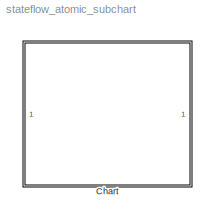
MODEL stateflow_atomic_subchart
KIND model
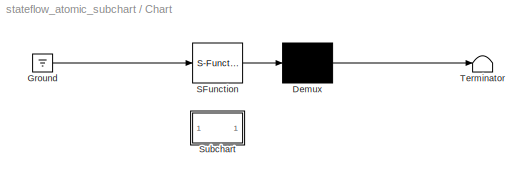
BLOCK [SubSystem] Chart
  ErrorFcn = Stateflow.Translate.translate
  PermitHierarchicalResolution = ExplicitOnly
  Ports = []
  RequestExecContextInheritance = off
  SFBlockType = Chart
  SID = 1
  TreatAsAtomicUnit = on
  Variant = off
BLOCK [Demux] Chart/ Demux 
  Outputs = 1
  Ports = [1, 1]
  SID = 1::79
BLOCK [Ground] Chart/ Ground 
  SID = 1::81
BLOCK [S-Function] Chart/ SFunction 
  EnableBusSupport = off
  FunctionName = sf_sfun
  PortCounts = [1 1]
  Ports = [1, 1]
  SFunctionDeploymentMode = off
  SID = 1::78
  Tag = Stateflow S-Function stateflow_atomic_subchart 3
BLOCK [Terminator] Chart/ Terminator 
  SID = 1::80
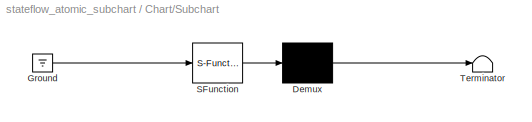
BLOCK [SubSystem] Chart/Subchart
  CopyFcn = set_param(gcbh, 'DSMNames', '', 'DSMValues', '', 'CopyFcn', '')
  ErrorFcn = Stateflow.Translate.translate
  PermitHierarchicalResolution = ExplicitOnly
  Ports = []
  RequestExecContextInheritance = off
  SFBlockType = Chart
  SID = 1::77
  TreatAsAtomicUnit = on
  Variant = off
BLOCK [Demux] Chart/Subchart/ Demux 
  Outputs = 1
  Ports = [1, 1]
  SID = 1::77::74
BLOCK [Ground] Chart/Subchart/ Ground 
  SID = 1::77::76
BLOCK [S-Function] Chart/Subchart/ SFunction 
  EnableBusSupport = off
  FunctionName = sf_sfun
  PortCounts = [1 1]
  Ports = [1, 1]
  SFunctionDeploymentMode = off
  SID = 1::77::73
  Tag = Stateflow S-Function stateflow_atomic_subchart 1
BLOCK [Terminator] Chart/Subchart/ Terminator 
  SID = 1::77::75
LINE Chart/ Demux :1 -> Chart/ Terminator :1
LINE Chart/ Ground :1 -> Chart/ SFunction :1
LINE Chart/ SFunction :1 -> Chart/ Demux :1
LINE Chart/Subchart/ Demux :1 -> Chart/Subchart/ Terminator :1
LINE Chart/Subchart/ Ground :1 -> Chart/Subchart/ SFunction :1
LINE Chart/Subchart/ SFunction :1 -> Chart/Subchart/ Demux :1
CHART Chart/Subchart states=2 transitions=1
  STATE_LABEL 'State_lvl2_1'
  STATE_LABEL 'State_lvl2_2'
CHART Chart states=2 transitions=0
  STATE_LABEL 'State_lvl1'
  STATE_LABEL 'Subchart'
